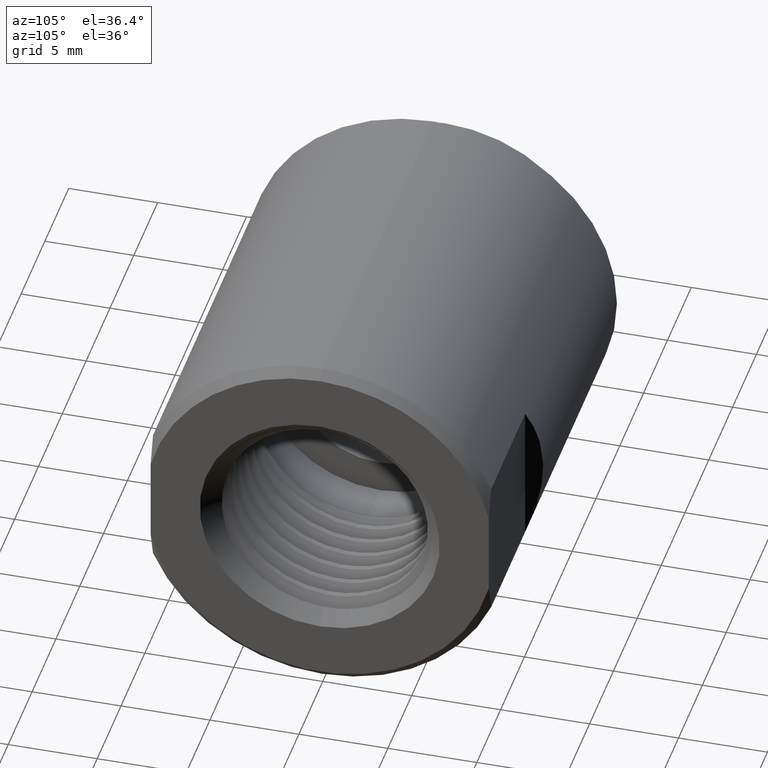
[diagram: clean part render]
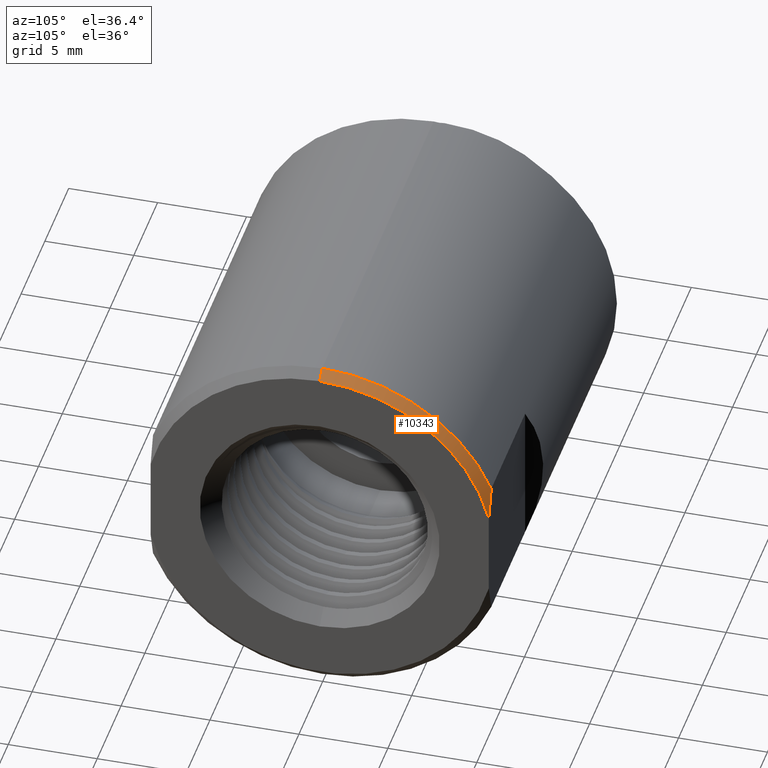
[diagram: same view with one face highlighted and labeled with its STEP entity id]
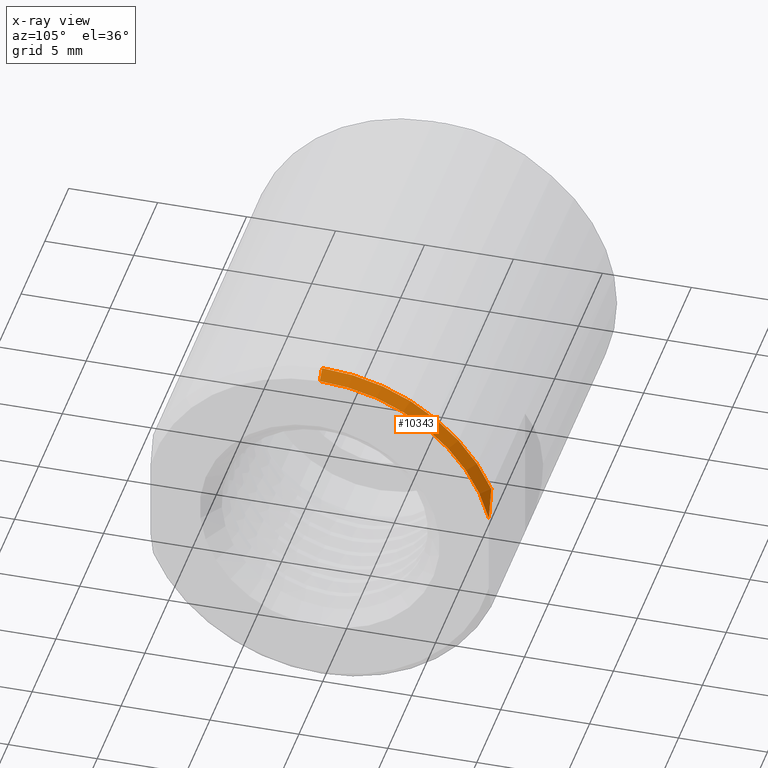
[diagram: x-ray of the same camera — body ghosted, the highlighted face saturated]
A machine part, auxiliary view. The second image highlights one B-rep face of the part: STEP entity #10343.
The next image is the same camera in x-ray: the body ghosted, the highlighted face saturated — about 0% of this face is hidden behind the body in this view.
In plain terms, the highlighted conical surface has half-angle 45 deg.
Its self-contained STEP definition (entity closure, byte-faithful):
#103 = CONICAL_SURFACE ( 'NONE', #5786, 0.4057499999999999440, 0.7853981633974466137 ) ;
#156 = CARTESIAN_POINT ( 'NONE',  ( 0.8119999999999999440, 0.3742499999999999716, 0.09348796714016191500 ) ) ;
#255 = VECTOR ( 'NONE', #4872, 39.37007874015748854 ) ;
#364 = EDGE_CURVE ( 'NONE', #2981, #3507, #4209, .T. ) ;
#369 = CARTESIAN_POINT ( 'NONE',  ( 0.7919999999999999263, 0.3742499999999999716, 0.1567482057313575317 ) ) ;
#373 = CARTESIAN_POINT ( 'NONE',  ( 0.7919999999999999263, 0.0000000000000000000, 0.0000000000000000000 ) ) ;
#597 = EDGE_CURVE ( 'NONE', #5968, #3507, #10634, .T. ) ;
#775 = DIRECTION ( 'NONE',  ( 0.0000000000000000000, 0.0000000000000000000, 1.000000000000000000 ) ) ;
#1270 = ORIENTED_EDGE ( 'NONE', *, *, #597, .F. ) ;
#1823 = EDGE_CURVE ( 'NONE', #8269, #5968, #5263, .T. ) ;
#1837 = AXIS2_PLACEMENT_3D ( 'NONE', #4780, #10526, #3281 ) ;
#2115 = CARTESIAN_POINT ( 'NONE',  ( 0.7919999999999999263, 0.0000000000000000000, 0.4057499999999999440 ) ) ;
#2513 = LINE ( 'NONE', #9093, #255 ) ;
#2981 = VERTEX_POINT ( 'NONE', #6522 ) ;
#3281 = DIRECTION ( 'NONE',  ( 0.0000000000000000000, 0.0000000000000000000, 1.000000000000000000 ) ) ;
#3507 = VERTEX_POINT ( 'NONE', #10639 ) ;
#3763 = FACE_OUTER_BOUND ( 'NONE', #9891, .T. ) ;
#4209 = CIRCLE ( 'NONE', #4730, 0.3857499999999999818 ) ;
#4730 = AXIS2_PLACEMENT_3D ( 'NONE', #8307, #4851, #775 ) ;
#4780 = CARTESIAN_POINT ( 'NONE',  ( 0.7919999999999999263, 0.0000000000000000000, 0.0000000000000000000 ) ) ;
#4851 = DIRECTION ( 'NONE',  ( -1.000000000000000000, -0.0000000000000000000, -0.0000000000000000000 ) ) ;
#4872 = DIRECTION ( 'NONE',  ( -0.7071067811865486830, 0.0000000000000000000, 0.7071067811865462405 ) ) ;
#4895 = ORIENTED_EDGE ( 'NONE', *, *, #364, .T. ) ;
#4981 = EDGE_CURVE ( 'NONE', #2981, #8269, #2513, .T. ) ;
#5218 = CARTESIAN_POINT ( 'NONE',  ( 0.7999456830944787766, 0.3742499999999999716, 0.1361804365467487454 ) ) ;
#5263 = CIRCLE ( 'NONE', #1837, 0.4057499999999999440 ) ;
#5786 = AXIS2_PLACEMENT_3D ( 'NONE', #373, #6318, #8679 ) ;
#5968 = VERTEX_POINT ( 'NONE', #369 ) ;
#6318 = DIRECTION ( 'NONE',  ( -1.000000000000000000, -0.0000000000000000000, -0.0000000000000000000 ) ) ;
#6522 = CARTESIAN_POINT ( 'NONE',  ( 0.8119999999999999440, 0.0000000000000000000, 0.3857499999999999818 ) ) ;
#7184 = ORIENTED_EDGE ( 'NONE', *, *, #1823, .F. ) ;
#8269 = VERTEX_POINT ( 'NONE', #2115 ) ;
#8307 = CARTESIAN_POINT ( 'NONE',  ( 0.8119999999999999440, 0.0000000000000000000, 0.0000000000000000000 ) ) ;
#8679 = DIRECTION ( 'NONE',  ( 0.0000000000000000000, 0.0000000000000000000, 1.000000000000000000 ) ) ;
#9093 = CARTESIAN_POINT ( 'NONE',  ( 0.7919999999999999263, 0.0000000000000000000, 0.4057499999999999440 ) ) ;
#9385 = CARTESIAN_POINT ( 'NONE',  ( 0.8067537856860708123, 0.3742499999999999716, 0.1151348938357023982 ) ) ;
#9891 = EDGE_LOOP ( 'NONE', ( #10402, #4895, #1270, #7184 ) ) ;
#10037 = CARTESIAN_POINT ( 'NONE',  ( 0.7919999999999999263, 0.3742499999999999716, 0.1567482057313575317 ) ) ;
#10343 = ADVANCED_FACE ( 'NONE', ( #3763 ), #103, .T. ) ;
#10402 = ORIENTED_EDGE ( 'NONE', *, *, #4981, .F. ) ;
#10526 = DIRECTION ( 'NONE',  ( -1.000000000000000000, -0.0000000000000000000, -0.0000000000000000000 ) ) ;
#10634 = B_SPLINE_CURVE_WITH_KNOTS ( 'NONE', 3,
 ( #10037, #5218, #9385, #156 ),
 .UNSPECIFIED., .F., .F.,
 ( 4, 4 ),
 ( 0.02080557838822214012, 0.02248878012545890703 ),
 .UNSPECIFIED. ) ;
#10639 = CARTESIAN_POINT ( 'NONE',  ( 0.8119999999999999440, 0.3742499999999999716, 0.09348796714016191500 ) ) ;